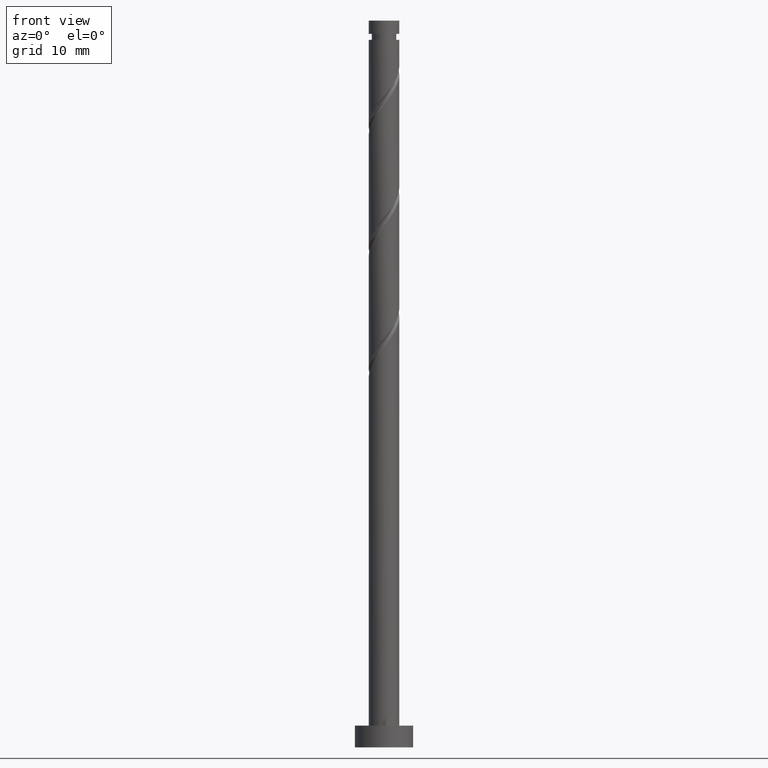
[diagram: clean part render]
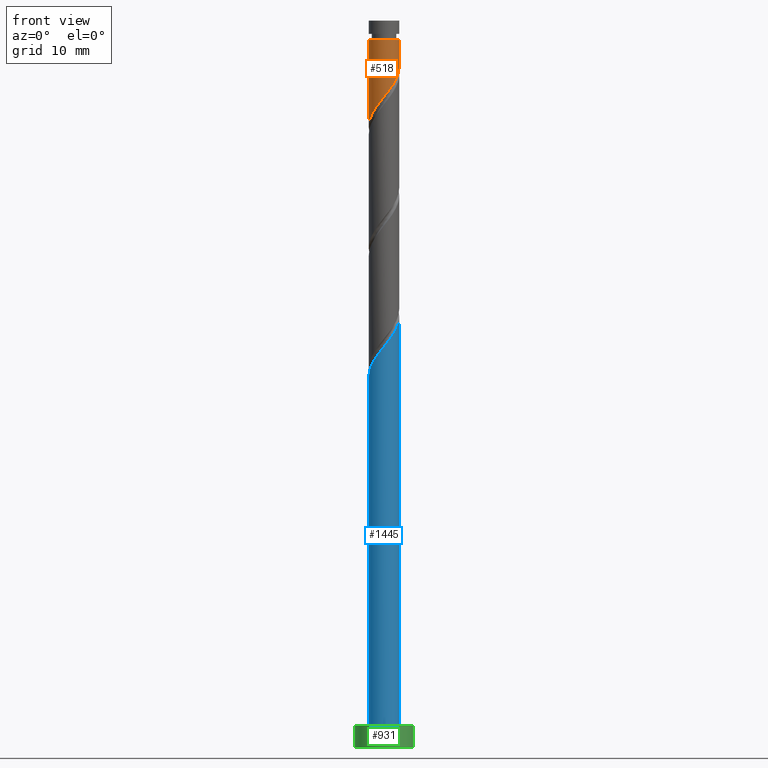
[diagram: same view with three faces highlighted in distinct colors, each labeled with its STEP entity id]
A machine part, front view with three faces highlighted in distinct colors.
Their STEP definitions:

[orange] entity #518 — the highlighted cylindrical surface (edge-blend (fillet) strip) has radius 2.1 mm, axis along (-0, -0, -1).
#6 =( BOUNDED_CURVE ( )  B_SPLINE_CURVE ( 2, ( #1113, #739, #1213, #853, #1310, #1419, #761, #754, #1443, #46, #1230, #871, #1317, #861, #416, #885, #746, #189, #660, #1206, #274 ),
 .UNSPECIFIED., .F., .T. ) 
 B_SPLINE_CURVE_WITH_KNOTS ( ( 3, 2, 2, 2, 2, 2, 2, 2, 2, 2, 3 ),
 ( 0.3045248053855289516, 0.3055555555555555802, 0.3194444444444444198, 0.3333333333333333148, 0.3472222222222222099, 0.3611111111111111049, 0.3750000000000000000, 0.3888888888888888951, 0.4027777777777777901, 0.4166666666666666852, 0.4295248053855290626 ),
 .UNSPECIFIED. ) 
 CURVE ( )  GEOMETRIC_REPRESENTATION_ITEM ( )  RATIONAL_B_SPLINE_CURVE ( ( 0.9071930855141209227, 0.9080659294509686452, 0.9090909090909088386, 0.8952797754656434126, 0.9090909090909088386, 0.8952797754656434126, 0.9090909090909088386, 0.8952797754656434126, 0.9090909090909088386, 0.8952797754656434126, 0.9090909090909088386, 0.8952797754656434126, 0.9090909090909088386, 0.8952797754656434126, 0.9090909090909088386, 0.8952797754656434126, 0.9090909090909088386, 0.8952797754656434126, 0.9090909090909088386, 0.8963047551055834949, 0.9071930855141210337 ) ) 
 REPRESENTATION_ITEM ( '' )  );
#28 = EDGE_LOOP ( 'NONE', ( #482, #1118, #778, #484 ) ) ;
#39 = CIRCLE ( 'NONE', #425, 2.100000000000000089 ) ;
#46 = CARTESIAN_POINT ( 'NONE',  ( 0.6773835311792414382, -2.021945538802111031, 90.39476282706966970 ) ) ;
#64 = VECTOR ( 'NONE', #1329, 1000.000000000000000 ) ;
#67 = CARTESIAN_POINT ( 'NONE',  ( -2.100000000000000089, 0.000000000000000000, 97.33920727151409835 ) ) ;
#69 = EDGE_CURVE ( 'NONE', #1053, #836, #39, .T. ) ;
#154 = CARTESIAN_POINT ( 'NONE',  ( 2.100000000000000089, 2.571758278209441464E-16, 100.0000000000000000 ) ) ;
#185 = FACE_OUTER_BOUND ( 'NONE', #28, .T. ) ;
#187 = LINE ( 'NONE', #154, #527 ) ;
#189 = CARTESIAN_POINT ( 'NONE',  ( -1.873601227009899617, -1.018199711422870468, 86.69105912336596020 ) ) ;
#199 = CARTESIAN_POINT ( 'NONE',  ( 2.100000000000000089, 2.571758278209441464E-16, 97.33920727151409835 ) ) ;
#274 = CARTESIAN_POINT ( 'NONE',  ( -2.100000000000000089, -1.273546898122695168E-15, 85.37006215983618063 ) ) ;
#329 = DIRECTION ( 'NONE',  ( -1.000000000000000000, 0.000000000000000000, 0.000000000000000000 ) ) ;
#380 = AXIS2_PLACEMENT_3D ( 'NONE', #1425, #1314, #646 ) ;
#384 = EDGE_CURVE ( 'NONE', #836, #959, #1343, .T. ) ;
#391 = CARTESIAN_POINT ( 'NONE',  ( 2.100000000000000089, 4.668427045904307298E-16, 93.70339549316955186 ) ) ;
#416 = CARTESIAN_POINT ( 'NONE',  ( -1.096570042982211612, -1.790959000321892480, 88.07994801225487436 ) ) ;
#422 = DIRECTION ( 'NONE',  ( -0.000000000000000000, -0.000000000000000000, -1.000000000000000000 ) ) ;
#425 = AXIS2_PLACEMENT_3D ( 'NONE', #549, #1268, #329 ) ;
#482 = ORIENTED_EDGE ( 'NONE', *, *, #749, .F. ) ;
#484 = ORIENTED_EDGE ( 'NONE', *, *, #1404, .F. ) ;
#490 = VERTEX_POINT ( 'NONE', #391 ) ;
#518 = ADVANCED_FACE ( 'NONE', ( #185 ), #1225, .T. ) ;
#527 = VECTOR ( 'NONE', #422, 1000.000000000000000 ) ;
#549 = CARTESIAN_POINT ( 'NONE',  ( 0.000000000000000000, 0.000000000000000000, 97.33920727151409835 ) ) ;
#646 = DIRECTION ( 'NONE',  ( -1.000000000000000000, 0.000000000000000000, 0.000000000000000000 ) ) ;
#660 = CARTESIAN_POINT ( 'NONE',  ( -1.991227642780765139, -0.6670925532681040160, 86.22809616040296987 ) ) ;
#739 = CARTESIAN_POINT ( 'NONE',  ( 2.100000000000000089, -0.02709351609724153231, 93.66937811923718016 ) ) ;
#746 = CARTESIAN_POINT ( 'NONE',  ( -1.642982831545760636, -1.307901913465178589, 87.15402208632890790 ) ) ;
#749 = EDGE_CURVE ( 'NONE', #1053, #490, #187, .T. ) ;
#754 = CARTESIAN_POINT ( 'NONE',  ( 1.328078408668829313, -1.668328490022959576, 91.32068875299556510 ) ) ;
#761 = CARTESIAN_POINT ( 'NONE',  ( 1.573332919195984614, -1.390907446731896702, 91.78365171595854122 ) ) ;
#778 = ORIENTED_EDGE ( 'NONE', *, *, #384, .T. ) ;
#836 = VERTEX_POINT ( 'NONE', #67 ) ;
#853 = CARTESIAN_POINT ( 'NONE',  ( 2.089747967260863870, -0.4243414232946239317, 93.17254060484744116 ) ) ;
#861 = CARTESIAN_POINT ( 'NONE',  ( -0.7807756498828020142, -1.984313885136296918, 88.54291097521777942 ) ) ;
#871 = CARTESIAN_POINT ( 'NONE',  ( -0.05501379728676022984, -2.131686114863703185, 89.46883690114373167 ) ) ;
#885 = CARTESIAN_POINT ( 'NONE',  ( -1.412364436081621433, -1.597604115507487599, 87.61698504929186981 ) ) ;
#898 = CARTESIAN_POINT ( 'NONE',  ( -2.100000000000000089, -1.273546898122695168E-15, 85.37006215983618063 ) ) ;
#959 = VERTEX_POINT ( 'NONE', #898 ) ;
#976 = CARTESIAN_POINT ( 'NONE',  ( -2.100000000000000089, 0.000000000000000000, 100.0000000000000000 ) ) ;
#1053 = VERTEX_POINT ( 'NONE', #199 ) ;
#1113 = CARTESIAN_POINT ( 'NONE',  ( 2.100000000000000089, 4.668427045904307298E-16, 93.70339549316955186 ) ) ;
#1118 = ORIENTED_EDGE ( 'NONE', *, *, #69, .T. ) ;
#1206 = CARTESIAN_POINT ( 'NONE',  ( -2.100000000000000533, -0.3424141808229591022, 85.79998167220182381 ) ) ;
#1213 = CARTESIAN_POINT ( 'NONE',  ( 2.099301012906246822, -0.05417801409064348928, 93.63550356781040307 ) ) ;
#1225 = CYLINDRICAL_SURFACE ( 'NONE', #380, 2.100000000000000089 ) ;
#1230 = CARTESIAN_POINT ( 'NONE',  ( 0.3111848669462410899, -2.076815826832907330, 89.93179986410669358 ) ) ;
#1268 = DIRECTION ( 'NONE',  ( -0.000000000000000000, -0.000000000000000000, -1.000000000000000000 ) ) ;
#1310 = CARTESIAN_POINT ( 'NONE',  ( 1.954167698492001781, -0.7689139133677278526, 92.70957764188447925 ) ) ;
#1314 = DIRECTION ( 'NONE',  ( -0.000000000000000000, -0.000000000000000000, -1.000000000000000000 ) ) ;
#1317 = CARTESIAN_POINT ( 'NONE',  ( -0.4178947235847806918, -2.058000000000000274, 89.00587393818078397 ) ) ;
#1329 = DIRECTION ( 'NONE',  ( -0.000000000000000000, -0.000000000000000000, -1.000000000000000000 ) ) ;
#1343 = LINE ( 'NONE', #976, #64 ) ;
#1404 = EDGE_CURVE ( 'NONE', #490, #959, #6, .T. ) ;
#1419 = CARTESIAN_POINT ( 'NONE',  ( 1.818587429723140136, -1.113486403440834049, 92.24661467892150313 ) ) ;
#1425 = CARTESIAN_POINT ( 'NONE',  ( 0.000000000000000000, 0.000000000000000000, 100.0000000000000000 ) ) ;
#1443 = CARTESIAN_POINT ( 'NONE',  ( 1.002730969924035209, -1.845137014412534748, 90.85772579003260319 ) ) ;

[blue] entity #1445 — the highlighted cylindrical surface (edge-blend (fillet) strip) has radius 2.1 mm, axis along (-0, -0, -1).
#16 = CARTESIAN_POINT ( 'NONE',  ( 1.642982831545762190, -1.307901913465180810, 57.52439245669928169 ) ) ;
#24 = ORIENTED_EDGE ( 'NONE', *, *, #817, .T. ) ;
#27 = VERTEX_POINT ( 'NONE', #1193 ) ;
#36 = CARTESIAN_POINT ( 'NONE',  ( -0.3111848669462424222, -2.076815826832910439, 54.74661467892150313 ) ) ;
#112 = CARTESIAN_POINT ( 'NONE',  ( 2.100000000000000089, 2.571758278209441464E-16, 3.000000000000000000 ) ) ;
#143 = CARTESIAN_POINT ( 'NONE',  ( 0.05501379728675846043, -2.131686114863705406, 55.20957764188447214 ) ) ;
#148 = CARTESIAN_POINT ( 'NONE',  ( -0.6773835311792429925, -2.021945538802113251, 54.28365171595854122 ) ) ;
#166 = CARTESIAN_POINT ( 'NONE',  ( 0.000000000000000000, 0.000000000000000000, 100.0000000000000000 ) ) ;
#206 = EDGE_CURVE ( 'NONE', #1235, #582, #335, .T. ) ;
#244 = CARTESIAN_POINT ( 'NONE',  ( -2.100000000000002309, 1.583530453970730612E-15, 50.97501904985868038 ) ) ;
#261 = VERTEX_POINT ( 'NONE', #941 ) ;
#293 =( BOUNDED_CURVE ( )  B_SPLINE_CURVE ( 2, ( #244, #828, #590, #730, #1285, #839, #603, #1047, #715, #148, #36, #143, #1165, #608, #1051, #1308, #16, #1066, #478, #493, #720 ),
 .UNSPECIFIED., .F., .T. ) 
 B_SPLINE_CURVE_WITH_KNOTS ( ( 3, 2, 2, 2, 2, 2, 2, 2, 2, 2, 3 ),
 ( 0.05452480538552904182, 0.05555555555555558023, 0.06944444444444441977, 0.08333333333333337034, 0.09722222222222220989, 0.1111111111111111605, 0.1250000000000000000, 0.1388888888888888395, 0.1527777777777777901, 0.1666666666666666297, 0.1795248053855291459 ),
 .UNSPECIFIED. ) 
 CURVE ( )  GEOMETRIC_REPRESENTATION_ITEM ( )  RATIONAL_B_SPLINE_CURVE ( ( 0.9071930855141270289, 0.9080659294509747514, 0.9090909090909148338, 0.8952797754656494078, 0.9090909090909148338, 0.8952797754656494078, 0.9090909090909148338, 0.8952797754656494078, 0.9090909090909148338, 0.8952797754656494078, 0.9090909090909148338, 0.8952797754656494078, 0.9090909090909148338, 0.8952797754656494078, 0.9090909090909148338, 0.8952797754656494078, 0.9090909090909148338, 0.8952797754656494078, 0.9090909090909148338, 0.8963047551055894901, 0.9071930855141271399 ) ) 
 REPRESENTATION_ITEM ( '' )  );
#312 = ORIENTED_EDGE ( 'NONE', *, *, #1012, .F. ) ;
#318 = DIRECTION ( 'NONE',  ( -0.000000000000000000, -0.000000000000000000, -1.000000000000000000 ) ) ;
#322 = DIRECTION ( 'NONE',  ( 0.000000000000000000, 0.000000000000000000, 1.000000000000000000 ) ) ;
#323 = EDGE_CURVE ( 'NONE', #261, #27, #293, .T. ) ;
#327 = LINE ( 'NONE', #554, #1320 ) ;
#335 = CIRCLE ( 'NONE', #600, 2.100000000000000089 ) ;
#359 = VECTOR ( 'NONE', #768, 1000.000000000000000 ) ;
#457 = AXIS2_PLACEMENT_3D ( 'NONE', #166, #634, #1338 ) ;
#478 = CARTESIAN_POINT ( 'NONE',  ( 1.991227642780767360, -0.6670925532681063475, 58.45031838262521262 ) ) ;
#493 = CARTESIAN_POINT ( 'NONE',  ( 2.100000000000003642, -0.3424141808229590467, 58.87843287082640131 ) ) ;
#496 = EDGE_LOOP ( 'NONE', ( #312, #1151, #24, #804 ) ) ;
#514 = FACE_OUTER_BOUND ( 'NONE', #496, .T. ) ;
#554 = CARTESIAN_POINT ( 'NONE',  ( 2.100000000000000089, 2.571758278209441464E-16, 100.0000000000000000 ) ) ;
#582 = VERTEX_POINT ( 'NONE', #112 ) ;
#590 = CARTESIAN_POINT ( 'NONE',  ( -2.099301012906249042, -0.05417801409064230272, 51.04291097521780785 ) ) ;
#600 = AXIS2_PLACEMENT_3D ( 'NONE', #1160, #322, #1150 ) ;
#603 = CARTESIAN_POINT ( 'NONE',  ( -1.573332919195987056, -1.390907446731896924, 52.89476282706965549 ) ) ;
#608 = CARTESIAN_POINT ( 'NONE',  ( 0.7807756498828013481, -1.984313885136300692, 56.13550356781038886 ) ) ;
#634 = DIRECTION ( 'NONE',  ( -0.000000000000000000, -0.000000000000000000, -1.000000000000000000 ) ) ;
#715 = CARTESIAN_POINT ( 'NONE',  ( -1.002730969924037874, -1.845137014412537191, 53.82068875299557931 ) ) ;
#720 = CARTESIAN_POINT ( 'NONE',  ( 2.100000000000002309, -1.609673645427794258E-15, 59.30835238319201608 ) ) ;
#730 = CARTESIAN_POINT ( 'NONE',  ( -2.089747967260866535, -0.4243414232946238762, 51.50587393818077686 ) ) ;
#768 = DIRECTION ( 'NONE',  ( -0.000000000000000000, -0.000000000000000000, -1.000000000000000000 ) ) ;
#804 = ORIENTED_EDGE ( 'NONE', *, *, #206, .T. ) ;
#817 = EDGE_CURVE ( 'NONE', #261, #1235, #875, .T. ) ;
#828 = CARTESIAN_POINT ( 'NONE',  ( -2.100000000000002309, -0.02709351609724274315, 51.00903642379103786 ) ) ;
#839 = CARTESIAN_POINT ( 'NONE',  ( -1.818587429723142801, -1.113486403440834493, 52.43179986410668647 ) ) ;
#875 = LINE ( 'NONE', #977, #359 ) ;
#941 = CARTESIAN_POINT ( 'NONE',  ( -2.100000000000002309, 1.583530453970730612E-15, 50.97501904985868038 ) ) ;
#958 = CARTESIAN_POINT ( 'NONE',  ( -2.100000000000000089, 0.000000000000000000, 3.000000000000000000 ) ) ;
#977 = CARTESIAN_POINT ( 'NONE',  ( -2.100000000000000089, 0.000000000000000000, 100.0000000000000000 ) ) ;
#1012 = EDGE_CURVE ( 'NONE', #27, #582, #327, .T. ) ;
#1047 = CARTESIAN_POINT ( 'NONE',  ( -1.328078408668831090, -1.668328490022961574, 53.35772579003261740 ) ) ;
#1051 = CARTESIAN_POINT ( 'NONE',  ( 1.096570042982212945, -1.790959000321894923, 56.59846653077336498 ) ) ;
#1066 = CARTESIAN_POINT ( 'NONE',  ( 1.873601227009901615, -1.018199711422872689, 57.98735541966223650 ) ) ;
#1150 = DIRECTION ( 'NONE',  ( 1.000000000000000000, 0.000000000000000000, 0.000000000000000000 ) ) ;
#1151 = ORIENTED_EDGE ( 'NONE', *, *, #323, .F. ) ;
#1160 = CARTESIAN_POINT ( 'NONE',  ( 0.000000000000000000, 0.000000000000000000, 3.000000000000000000 ) ) ;
#1165 = CARTESIAN_POINT ( 'NONE',  ( 0.4178947235847804698, -2.058000000000002938, 55.67254060484742695 ) ) ;
#1193 = CARTESIAN_POINT ( 'NONE',  ( 2.100000000000002309, -1.609673645427794455E-15, 59.30835238319201608 ) ) ;
#1235 = VERTEX_POINT ( 'NONE', #958 ) ;
#1285 = CARTESIAN_POINT ( 'NONE',  ( -1.954167698492004446, -0.7689139133677288518, 51.96883690114372456 ) ) ;
#1308 = CARTESIAN_POINT ( 'NONE',  ( 1.412364436081622543, -1.597604115507490263, 57.06142949373631268 ) ) ;
#1320 = VECTOR ( 'NONE', #318, 1000.000000000000000 ) ;
#1325 = CYLINDRICAL_SURFACE ( 'NONE', #457, 2.100000000000000089 ) ;
#1338 = DIRECTION ( 'NONE',  ( -1.000000000000000000, 0.000000000000000000, 0.000000000000000000 ) ) ;
#1445 = ADVANCED_FACE ( 'NONE', ( #514 ), #1325, .T. ) ;

[green] entity #931 — the highlighted cylindrical surface (edge-blend (fillet) strip) has radius 4 mm, axis along (-0, -0, -1).
#40 = DIRECTION ( 'NONE',  ( 0.000000000000000000, 0.000000000000000000, 1.000000000000000000 ) ) ;
#76 = CARTESIAN_POINT ( 'NONE',  ( 0.000000000000000000, 0.000000000000000000, 3.000000000000000000 ) ) ;
#103 = DIRECTION ( 'NONE',  ( -0.000000000000000000, -0.000000000000000000, -1.000000000000000000 ) ) ;
#116 = VERTEX_POINT ( 'NONE', #1038 ) ;
#152 = ORIENTED_EDGE ( 'NONE', *, *, #1188, .T. ) ;
#203 = VERTEX_POINT ( 'NONE', #793 ) ;
#413 = CARTESIAN_POINT ( 'NONE',  ( 4.000000000000000000, 4.898587196589412829E-16, 3.000000000000000000 ) ) ;
#420 = DIRECTION ( 'NONE',  ( -0.000000000000000000, -0.000000000000000000, -1.000000000000000000 ) ) ;
#428 = CYLINDRICAL_SURFACE ( 'NONE', #1201, 4.000000000000000000 ) ;
#445 = DIRECTION ( 'NONE',  ( -1.000000000000000000, 0.000000000000000000, 0.000000000000000000 ) ) ;
#506 = DIRECTION ( 'NONE',  ( 1.000000000000000000, 0.000000000000000000, 0.000000000000000000 ) ) ;
#510 = VERTEX_POINT ( 'NONE', #413 ) ;
#578 = CIRCLE ( 'NONE', #770, 4.000000000000000000 ) ;
#611 = CARTESIAN_POINT ( 'NONE',  ( 0.000000000000000000, 0.000000000000000000, 0.000000000000000000 ) ) ;
#721 = VERTEX_POINT ( 'NONE', #1336 ) ;
#767 = EDGE_CURVE ( 'NONE', #116, #510, #920, .T. ) ;
#770 = AXIS2_PLACEMENT_3D ( 'NONE', #611, #40, #506 ) ;
#784 = ORIENTED_EDGE ( 'NONE', *, *, #1141, .F. ) ;
#793 = CARTESIAN_POINT ( 'NONE',  ( 4.000000000000000000, 4.898587196589412829E-16, 0.000000000000000000 ) ) ;
#822 = AXIS2_PLACEMENT_3D ( 'NONE', #76, #1427, #892 ) ;
#892 = DIRECTION ( 'NONE',  ( 1.000000000000000000, 0.000000000000000000, 0.000000000000000000 ) ) ;
#906 = FACE_OUTER_BOUND ( 'NONE', #1194, .T. ) ;
#920 = CIRCLE ( 'NONE', #822, 4.000000000000000000 ) ;
#931 = ADVANCED_FACE ( 'NONE', ( #906 ), #428, .T. ) ;
#938 = LINE ( 'NONE', #1387, #1253 ) ;
#997 = CARTESIAN_POINT ( 'NONE',  ( 4.000000000000000000, 4.898587196589412829E-16, 3.000000000000000000 ) ) ;
#1018 = CARTESIAN_POINT ( 'NONE',  ( 0.000000000000000000, 0.000000000000000000, 3.000000000000000000 ) ) ;
#1038 = CARTESIAN_POINT ( 'NONE',  ( -4.000000000000000000, 0.000000000000000000, 3.000000000000000000 ) ) ;
#1057 = VECTOR ( 'NONE', #420, 1000.000000000000000 ) ;
#1102 = ORIENTED_EDGE ( 'NONE', *, *, #767, .F. ) ;
#1141 = EDGE_CURVE ( 'NONE', #510, #203, #1439, .T. ) ;
#1163 = ORIENTED_EDGE ( 'NONE', *, *, #1288, .T. ) ;
#1188 = EDGE_CURVE ( 'NONE', #116, #721, #938, .T. ) ;
#1194 = EDGE_LOOP ( 'NONE', ( #784, #1102, #152, #1163 ) ) ;
#1201 = AXIS2_PLACEMENT_3D ( 'NONE', #1018, #1341, #445 ) ;
#1253 = VECTOR ( 'NONE', #103, 1000.000000000000000 ) ;
#1288 = EDGE_CURVE ( 'NONE', #721, #203, #578, .T. ) ;
#1336 = CARTESIAN_POINT ( 'NONE',  ( -4.000000000000000000, 0.000000000000000000, 0.000000000000000000 ) ) ;
#1341 = DIRECTION ( 'NONE',  ( -0.000000000000000000, -0.000000000000000000, -1.000000000000000000 ) ) ;
#1387 = CARTESIAN_POINT ( 'NONE',  ( -4.000000000000000000, 0.000000000000000000, 3.000000000000000000 ) ) ;
#1427 = DIRECTION ( 'NONE',  ( 0.000000000000000000, 0.000000000000000000, 1.000000000000000000 ) ) ;
#1439 = LINE ( 'NONE', #997, #1057 ) ;